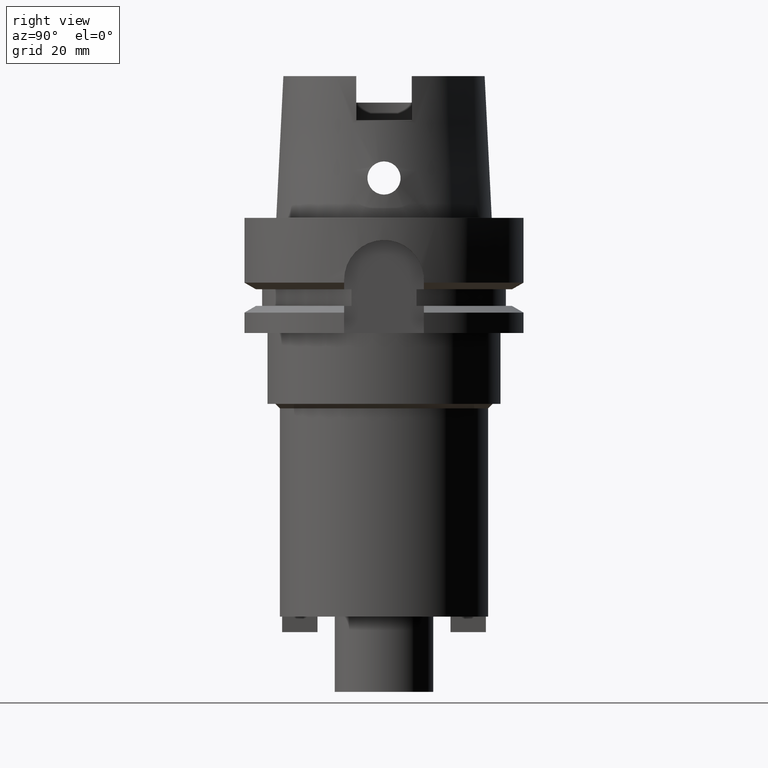
[diagram: clean part render]
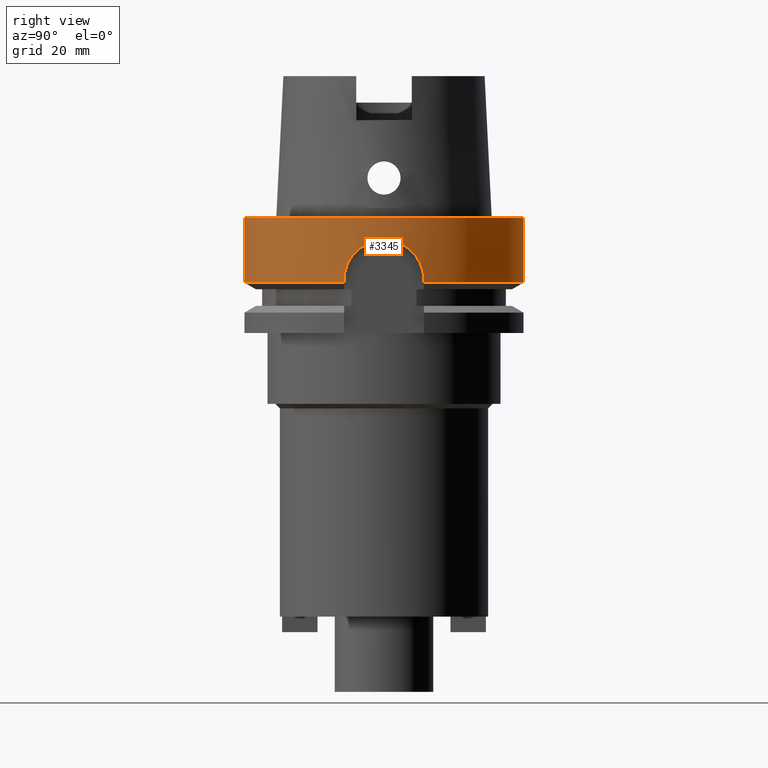
[diagram: same view with one face highlighted and labeled with its STEP entity id]
A machine part, right view. The second image highlights one B-rep face of the part: STEP entity #3345.
In plain terms, the highlighted cylindrical surface (partial cylindrical patch) has radius 31.5 mm, axis along (0, 0, -1).
Its self-contained STEP definition (entity closure, byte-faithful):
#599=CARTESIAN_POINT('',(0.E0,1.701646727415E-14,4.263256414561E-14));
#600=DIRECTION('',(0.E0,0.E0,-1.E0));
#601=DIRECTION('',(0.E0,1.E0,0.E0));
#602=AXIS2_PLACEMENT_3D('',#599,#600,#601);
#630=DIRECTION('',(0.E0,-2.672583210396E-14,-1.E0));
#631=VECTOR('',#630,1.462250092524E1);
#632=CARTESIAN_POINT('',(0.E0,-3.15E1,1.894780628694E-14));
#633=LINE('',#632,#631);
#1268=CARTESIAN_POINT('',(3.018691748979E1,-9.000000692473E0,
-1.462249533990E1));
#1281=CARTESIAN_POINT('',(0.E0,1.036372656198E-14,-1.462250092524E1));
#1282=DIRECTION('',(0.E0,0.E0,1.E0));
#1283=DIRECTION('',(0.E0,-1.E0,0.E0));
#1284=AXIS2_PLACEMENT_3D('',#1281,#1282,#1283);
#1289=DIRECTION('',(-3.316591997383E-7,-1.112415751840E-6,-9.999999999993E-1));
#1290=VECTOR('',#1289,6.224953399033E-1);
#1291=CARTESIAN_POINT('',(3.018691769625E1,-9.E0,-1.4E1));
#1292=LINE('',#1291,#1290);
#1296=DIRECTION('',(0.E0,2.721175632404E-14,-1.E0));
#1297=VECTOR('',#1296,1.462250092524E1);
#1298=CARTESIAN_POINT('',(0.E0,3.15E1,1.894780628694E-14));
#1299=LINE('',#1298,#1297);
#1303=DIRECTION('',(-6.966979873207E-8,2.336824643602E-7,1.E0));
#1304=VECTOR('',#1303,6.225020985254E-1);
#1305=CARTESIAN_POINT('',(3.018691773962E1,8.999999854532E0,-1.462250209853E1));
#1306=LINE('',#1305,#1304);
#1310=CARTESIAN_POINT('',(3.018691769625E1,-9.E0,-1.4E1));
#1311=CARTESIAN_POINT('',(3.018691769625E1,-9.E0,-1.338723433684E1));
#1312=CARTESIAN_POINT('',(3.022491848642E1,-8.874357547803E0,
-1.215306744736E1));
#1313=CARTESIAN_POINT('',(3.038959144145E1,-8.301787444812E0,
-1.035595364014E1));
#1314=CARTESIAN_POINT('',(3.063684995525E1,-7.353786334335E0,
-8.694065076403E0));
#1315=CARTESIAN_POINT('',(3.092236245063E1,-6.063808877055E0,
-7.256923051636E0));
#1316=CARTESIAN_POINT('',(3.119134875435E1,-4.504375120327E0,
-6.130732709563E0));
#1317=CARTESIAN_POINT('',(3.139559376513E1,-2.765991183068E0,
-5.366945006688E0));
#1318=CARTESIAN_POINT('',(3.150449819994E1,-9.311340854205E-1,
-4.983908948788E0));
#1319=CARTESIAN_POINT('',(3.150444105626E1,9.332452754480E-1,
-4.984137656240E0));
#1320=CARTESIAN_POINT('',(3.139543093772E1,2.767837086825E0,-5.367543451735E0));
#1321=CARTESIAN_POINT('',(3.119109302940E1,4.506114043522E0,-6.131716385673E0));
#1322=CARTESIAN_POINT('',(3.092206150721E1,6.065349073405E0,-7.258317357666E0));
#1323=CARTESIAN_POINT('',(3.063656598576E1,7.354913894333E0,-8.695626200768E0));
#1324=CARTESIAN_POINT('',(3.038936249143E1,8.302654106428E0,-1.035789716006E1));
#1325=CARTESIAN_POINT('',(3.022480042675E1,8.874677309206E0,-1.215491533768E1));
#1326=CARTESIAN_POINT('',(3.018691769625E1,9.E0,-1.338797604326E1));
#1327=CARTESIAN_POINT('',(3.018691769625E1,9.E0,-1.4E1));
#1346=CARTESIAN_POINT('',(3.018691773962E1,8.999999854532E0,-1.462250209853E1));
#1366=CARTESIAN_POINT('',(0.E0,1.036372656198E-14,-1.462250092524E1));
#1367=DIRECTION('',(0.E0,0.E0,1.E0));
#1368=DIRECTION('',(9.583148474999E-1,2.857142857143E-1,0.E0));
#1369=AXIS2_PLACEMENT_3D('',#1366,#1367,#1368);
#2228=CARTESIAN_POINT('',(0.E0,-3.15E1,4.263256414561E-14));
#2229=CARTESIAN_POINT('',(0.E0,3.15E1,4.263256414561E-14));
#2230=VERTEX_POINT('',#2228);
#2231=VERTEX_POINT('',#2229);
#2236=CARTESIAN_POINT('',(0.E0,3.15E1,-1.462250092524E1));
#2237=VERTEX_POINT('',#2236);
#2238=CARTESIAN_POINT('',(0.E0,-3.15E1,-1.462250092524E1));
#2239=VERTEX_POINT('',#2238);
#2463=VERTEX_POINT('',#1268);
#2464=CARTESIAN_POINT('',(3.018691769625E1,-9.E0,-1.4E1));
#2465=VERTEX_POINT('',#2464);
#2488=VERTEX_POINT('',#1346);
#2489=VERTEX_POINT('',#1327);
#3327=CARTESIAN_POINT('',(0.E0,1.701646727415E-14,3.895E1));
#3328=DIRECTION('',(0.E0,0.E0,-1.E0));
#3329=DIRECTION('',(0.E0,-1.E0,0.E0));
#3330=AXIS2_PLACEMENT_3D('',#3327,#3328,#3329);
#3331=CYLINDRICAL_SURFACE('',#3330,3.15E1);
#3333=ORIENTED_EDGE('',*,*,#3332,.F.);
#3334=ORIENTED_EDGE('',*,*,#3304,.T.);
#3335=ORIENTED_EDGE('',*,*,#3319,.F.);
#3336=ORIENTED_EDGE('',*,*,#2879,.F.);
#3337=ORIENTED_EDGE('',*,*,#2858,.F.);
#3338=ORIENTED_EDGE('',*,*,#2876,.T.);
#3340=ORIENTED_EDGE('',*,*,#3339,.F.);
#3342=ORIENTED_EDGE('',*,*,#3341,.T.);
#3343=EDGE_LOOP('',(#3333,#3334,#3335,#3336,#3337,#3338,#3340,#3342));
#3344=FACE_OUTER_BOUND('',#3343,.F.);
#603=CIRCLE('',#602,3.15E1);
#1285=CIRCLE('',#1284,3.15E1);
#1328=B_SPLINE_CURVE_WITH_KNOTS('',3,(#1310,#1311,#1312,#1313,#1314,#1315,#1316,
#1317,#1318,#1319,#1320,#1321,#1322,#1323,#1324,#1325,#1326,#1327),
.UNSPECIFIED.,.F.,.F.,(4,1,1,1,1,1,1,1,1,1,1,1,1,1,1,4),(0.E0,6.666666666667E-2,
1.333333333333E-1,2.E-1,2.666666666667E-1,3.333333333333E-1,4.E-1,
4.666666666667E-1,5.333333333333E-1,6.E-1,6.666666666667E-1,7.333333333333E-1,
8.E-1,8.666666666667E-1,9.333333333333E-1,1.E0),.UNSPECIFIED.);
#1370=CIRCLE('',#1369,3.15E1);
#2858=EDGE_CURVE('',#2231,#2230,#603,.T.);
#2876=EDGE_CURVE('',#2231,#2237,#1299,.T.);
#2879=EDGE_CURVE('',#2230,#2239,#633,.T.);
#3304=EDGE_CURVE('',#2465,#2463,#1292,.T.);
#3319=EDGE_CURVE('',#2239,#2463,#1285,.T.);
#3332=EDGE_CURVE('',#2465,#2489,#1328,.T.);
#3339=EDGE_CURVE('',#2488,#2237,#1370,.T.);
#3341=EDGE_CURVE('',#2488,#2489,#1306,.T.);
#3345=ADVANCED_FACE('',(#3344),#3331,.T.);